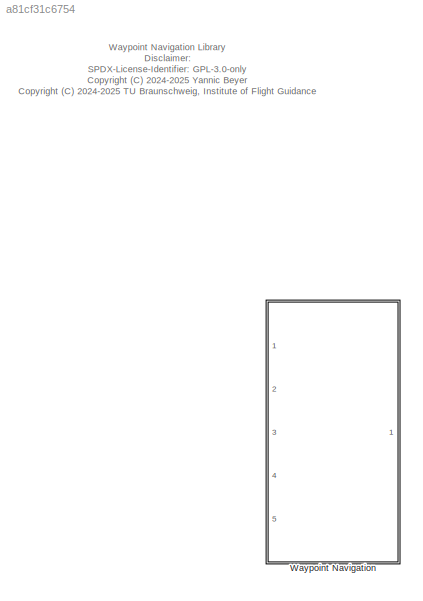
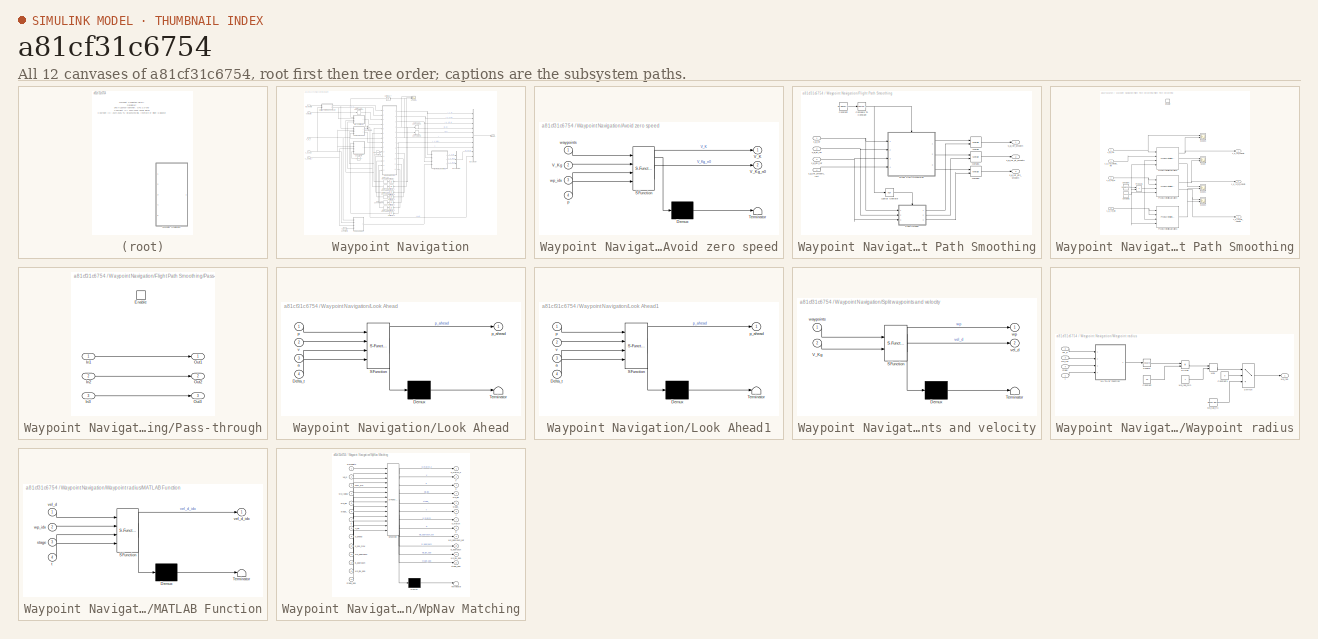
[diagram: thumbnail index - all 12 canvases of the model, root first then tree order]
MODEL slx_a81cf31c6754
KIND library
CONFIG AbsTol = auto
CONFIG EnableMultiTasking = off
CONFIG FixedStep = auto
CONFIG MaxStep = auto
CONFIG MinStep = auto
CONFIG RelTol = 1e-3
CONFIG SampleTimeConstraint = Unconstrained
CONFIG Solver = VariableStepAuto
CONFIG SolverName = VariableStepAuto
CONFIG StartTime = 0.0
CONFIG StopTime = 10.0
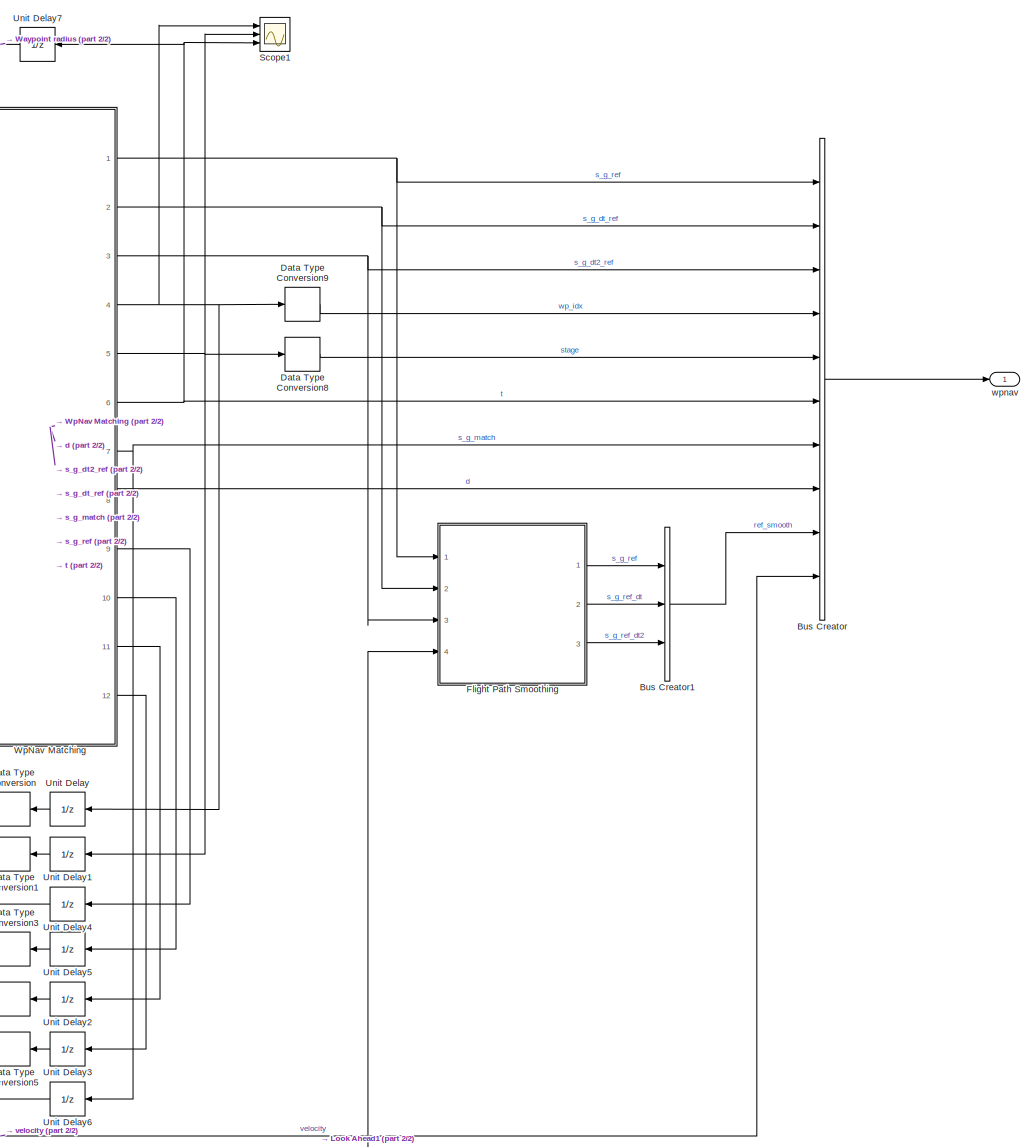
[diagram: Waypoint Navigation - part 1/2, right side, full height]
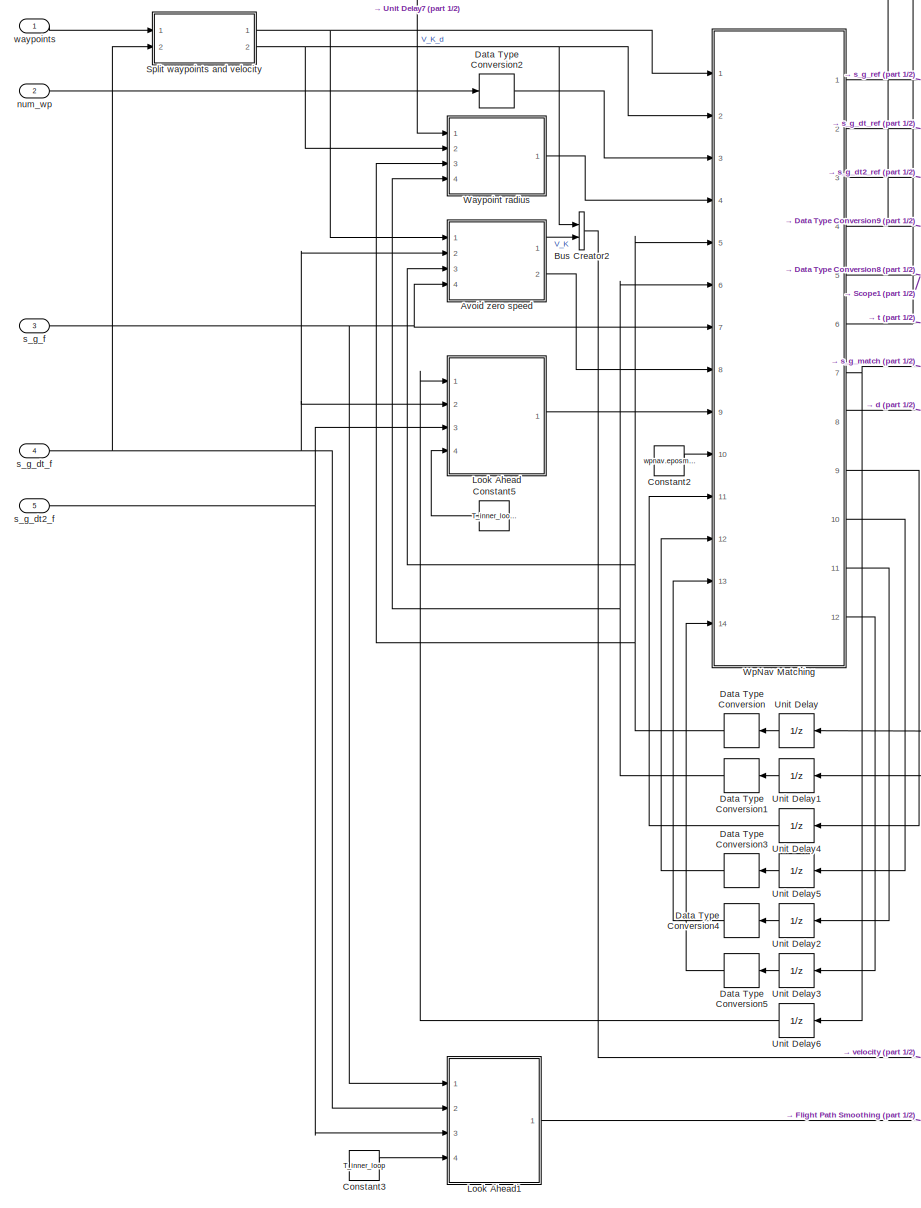
[diagram: Waypoint Navigation - part 2/2, left side, full height]
BLOCK [SubSystem] Waypoint Navigation
  Ports = [5, 1]
  RequestExecContextInheritance = off
BLOCK [SubSystem] Waypoint Navigation/Avoid zero speed
  ErrorFcn = Stateflow.Translate.translate
  PermitHierarchicalResolution = ExplicitOnly
  Ports = [4, 2]
  RequestExecContextInheritance = off
  SFBlockType = MATLAB Function
  TreatAsAtomicUnit = on
BLOCK [Demux] Waypoint Navigation/Avoid zero speed/ Demux 
  Outputs = 1
  Ports = [1, 1]
BLOCK [S-Function] Waypoint Navigation/Avoid zero speed/ SFunction 
  EnableBusSupport = off
  FunctionName = sf_sfun
  PortCounts = [4 3]
  Ports = [4, 3]
  SFcnIsStateOwnerBlock = off
  SFunctionDeploymentMode = off
  Tag = Stateflow S-Function wpnav_lib 14
BLOCK [Terminator] Waypoint Navigation/Avoid zero speed/ Terminator 
BLOCK [Outport] Waypoint Navigation/Avoid zero speed/V_K
  IconDisplay = Port number
BLOCK [Inport] Waypoint Navigation/Avoid zero speed/V_Kg
  IconDisplay = Port number
  Port = 2
BLOCK [Outport] Waypoint Navigation/Avoid zero speed/V_Kg_n0
  IconDisplay = Port number
  Port = 2
BLOCK [Inport] Waypoint Navigation/Avoid zero speed/p
  IconDisplay = Port number
  Port = 4
BLOCK [Inport] Waypoint Navigation/Avoid zero speed/waypoints
  IconDisplay = Port number
BLOCK [Inport] Waypoint Navigation/Avoid zero speed/wp_idx
  IconDisplay = Port number
  Port = 3
BLOCK [BusCreator] Waypoint Navigation/Bus Creator
  DisplayOption = bar
  InheritFromInputs = on
  Inputs = 10
  Ports = [10, 1]
BLOCK [BusCreator] Waypoint Navigation/Bus Creator1
  DisplayOption = bar
  InheritFromInputs = on
  Inputs = 3
  Ports = [3, 1]
BLOCK [BusCreator] Waypoint Navigation/Bus Creator2
  DisplayOption = bar
  InheritFromInputs = on
  Inputs = 2
  Ports = [2, 1]
BLOCK [Constant] Waypoint Navigation/Constant2
  Value = wpnav.eposmax
BLOCK [Constant] Waypoint Navigation/Constant3
  Value = T_inner_loop
BLOCK [Constant] Waypoint Navigation/Constant5
  Value = T_inner_loop + wpnav.T
BLOCK [DataTypeConversion] Waypoint Navigation/Data Type Conversion
  OutDataTypeStr = int32
  RndMeth = Floor
  SaturateOnIntegerOverflow = off
BLOCK [DataTypeConversion] Waypoint Navigation/Data Type Conversion1
  OutDataTypeStr = int32
  RndMeth = Floor
  SaturateOnIntegerOverflow = off
BLOCK [DataTypeConversion] Waypoint Navigation/Data Type Conversion2
  OutDataTypeStr = int32
  RndMeth = Floor
  SaturateOnIntegerOverflow = off
BLOCK [DataTypeConversion] Waypoint Navigation/Data Type Conversion3
  OutDataTypeStr = boolean
  RndMeth = Floor
  SaturateOnIntegerOverflow = off
BLOCK [DataTypeConversion] Waypoint Navigation/Data Type Conversion4
  OutDataTypeStr = int32
  RndMeth = Floor
  SaturateOnIntegerOverflow = off
BLOCK [DataTypeConversion] Waypoint Navigation/Data Type Conversion5
  OutDataTypeStr = int32
  RndMeth = Floor
  SaturateOnIntegerOverflow = off
BLOCK [DataTypeConversion] Waypoint Navigation/Data Type Conversion8
  RndMeth = Floor
  SaturateOnIntegerOverflow = off
BLOCK [DataTypeConversion] Waypoint Navigation/Data Type Conversion9
  RndMeth = Floor
  SaturateOnIntegerOverflow = off
BLOCK [SubSystem] Waypoint Navigation/Flight Path Smoothing
  Ports = [4, 3]
  RequestExecContextInheritance = off
BLOCK [Reference] Waypoint Navigation/Flight Path Smoothing/Compare To Constant  REF=simulink/Logic and Bit
Operations/Compare
To Constant
  Ports = [1, 1]
  SourceBlock = simulink/Logic and Bit\nOperations/Compare\nTo Constant
  SourceProductBaseCode = SL
  SourceProductName = Simulink
  SourceType = Compare To Constant
BLOCK [Constant] Waypoint Navigation/Flight Path Smoothing/Constant
  Value = ap.wpnav.T
BLOCK [SubSystem] Waypoint Navigation/Flight Path Smoothing/Flight Path Smoothing
  Ports = [4, 3, 1]
  RequestExecContextInheritance = off
BLOCK [Constant] Waypoint Navigation/Flight Path Smoothing/Flight Path Smoothing/Constant
  Value = 2/ap.wpnav.T
BLOCK [Constant] Waypoint Navigation/Flight Path Smoothing/Flight Path Smoothing/Constant1
  Value = 0.7071
BLOCK [EnablePort] Waypoint Navigation/Flight Path Smoothing/Flight Path Smoothing/Enable
  Ports = []
  StatesWhenEnabling = reset
BLOCK [Reference] Waypoint Navigation/Flight Path Smoothing/Flight Path Smoothing/PT2 discrete with saturation3  REF=filters_lib/PT2 discrete with saturation  (lib defined in slx_a584fcc4ebc5)
  Ports = [4, 1]
  SourceBlock = filters_lib/PT2 discrete with saturation
  SourceProductName = LADAC
  SourceType = PT2 discrete with saturation
BLOCK [Reference] Waypoint Navigation/Flight Path Smoothing/Flight Path Smoothing/PT2 discrete with saturation4  REF=filters_lib/PT2 discrete with saturation  (lib defined in slx_a584fcc4ebc5)
  Ports = [4, 2]
  SourceBlock = filters_lib/PT2 discrete with saturation
  SourceProductName = LADAC
  SourceType = PT2 discrete with saturation
BLOCK [Reference] Waypoint Navigation/Flight Path Smoothing/Flight Path Smoothing/PT2 discrete with saturation5  REF=filters_lib/PT2 discrete with saturation  (lib defined in slx_a584fcc4ebc5)
  Ports = [4, 3]
  SourceBlock = filters_lib/PT2 discrete with saturation
  SourceProductName = LADAC
  SourceType = PT2 discrete with saturation
BLOCK [Product] Waypoint Navigation/Flight Path Smoothing/Flight Path Smoothing/Product1
  InputSameDT = off
  OutDataTypeStr = Inherit: Inherit via internal rule
  Ports = [2, 1]
  RndMeth = Floor
  SaturateOnIntegerOverflow = off
BLOCK [Scope] Waypoint Navigation/Flight Path Smoothing/Flight Path Smoothing/Scope
  Floating = off
  NumInputPorts = 2
  Ports = [2]
  ScopeSpecificationString = Simulink.scopes.TimeScopeBlockCfg('CurrentConfiguration', extmgr.ConfigurationSet(extmgr.Configuration('Core','General UI',true),extmgr.Configuration('Core','Source UI',true),extmgr.Configuration('Sources','WiredSimulink',true,'DataLoggingVariableName','ScopeData13'),extmgr.Configuration('Visuals','Time Domain',true,'SerializedDisplays',{struct('MinYLimReal','-16.51582','MaxYLimReal','16.5113','YL...<+1553ch>
BLOCK [Scope] Waypoint Navigation/Flight Path Smoothing/Flight Path Smoothing/Scope1
  Floating = off
  NumInputPorts = 2
  Ports = [2]
  ScopeSpecificationString = Simulink.scopes.TimeScopeBlockCfg('CurrentConfiguration', extmgr.ConfigurationSet(extmgr.Configuration('Core','General UI',true),extmgr.Configuration('Core','Source UI',true),extmgr.Configuration('Sources','WiredSimulink',true,'DataLoggingVariableName','ScopeData14'),extmgr.Configuration('Visuals','Time Domain',true,'SerializedDisplays',{struct('MinYLimReal','-55.94734','MaxYLimReal','165.92894','...<+1370ch>
BLOCK [Scope] Waypoint Navigation/Flight Path Smoothing/Flight Path Smoothing/Scope2
  Floating = off
  NumInputPorts = 2
  Ports = [2]
  ScopeSpecificationString = Simulink.scopes.TimeScopeBlockCfg('CurrentConfiguration', extmgr.ConfigurationSet(extmgr.Configuration('Core','General UI',true),extmgr.Configuration('Core','Source UI',true),extmgr.Configuration('Sources','WiredSimulink',true,'DataLoggingVariableName','ScopeData15'),extmgr.Configuration('Visuals','Time Domain',true,'SerializedDisplays',{struct('MinYLimReal','-39.03924','MaxYLimReal','164.05026','...<+1370ch>
BLOCK [Scope] Waypoint Navigation/Flight Path Smoothing/Flight Path Smoothing/Scope3
  Floating = off
  NumInputPorts = 2
  Ports = [2]
  ScopeSpecificationString = Simulink.scopes.TimeScopeBlockCfg('CurrentConfiguration', extmgr.ConfigurationSet(extmgr.Configuration('Core','General UI',true),extmgr.Configuration('Core','Source UI',true),extmgr.Configuration('Sources','WiredSimulink',true,'DataLoggingVariableName','ScopeData1'),extmgr.Configuration('Visuals','Time Domain',true,'SerializedDisplays',{struct('MinYLimReal','-109.44686','MaxYLimReal','34.09141','Y...<+1470ch>
BLOCK [Inport] Waypoint Navigation/Flight Path Smoothing/Flight Path Smoothing/s_g_ref
  IconDisplay = Port number
BLOCK [Inport] Waypoint Navigation/Flight Path Smoothing/Flight Path Smoothing/s_g_ref_dt
  IconDisplay = Port number
  Port = 2
BLOCK [Inport] Waypoint Navigation/Flight Path Smoothing/Flight Path Smoothing/s_g_ref_dt2
  IconDisplay = Port number
  Port = 3
BLOCK [Outport] Waypoint Navigation/Flight Path Smoothing/Flight Path Smoothing/s_g_ref_dt2_smooth
  IconDisplay = Port number
  Port = 3
BLOCK [Outport] Waypoint Navigation/Flight Path Smoothing/Flight Path Smoothing/s_g_ref_dt_smooth
  IconDisplay = Port number
  Port = 2
BLOCK [Outport] Waypoint Navigation/Flight Path Smoothing/Flight Path Smoothing/s_g_ref_smooth
  IconDisplay = Port number
BLOCK [Inport] Waypoint Navigation/Flight Path Smoothing/Flight Path Smoothing/s_g_ref_smooth_init
  IconDisplay = Port number
  Port = 4
BLOCK [Logic] Waypoint Navigation/Flight Path Smoothing/Logical Operator
  AllPortsSameDT = off
  Operator = NOT
  OutDataTypeStr = boolean
  Ports = [1, 1]
BLOCK [Merge] Waypoint Navigation/Flight Path Smoothing/Merge
  Ports = [2, 1]
BLOCK [Merge] Waypoint Navigation/Flight Path Smoothing/Merge1
  Ports = [2, 1]
BLOCK [Merge] Waypoint Navigation/Flight Path Smoothing/Merge2
  Ports = [2, 1]
BLOCK [SubSystem] Waypoint Navigation/Flight Path Smoothing/Pass-through
  Ports = [3, 3, 1]
  RequestExecContextInheritance = off
BLOCK [EnablePort] Waypoint Navigation/Flight Path Smoothing/Pass-through/Enable
  Ports = []
BLOCK [Inport] Waypoint Navigation/Flight Path Smoothing/Pass-through/In1
  IconDisplay = Port number
BLOCK [Inport] Waypoint Navigation/Flight Path Smoothing/Pass-through/In2
  IconDisplay = Port number
  Port = 2
BLOCK [Inport] Waypoint Navigation/Flight Path Smoothing/Pass-through/In3
  IconDisplay = Port number
  Port = 3
BLOCK [Outport] Waypoint Navigation/Flight Path Smoothing/Pass-through/Out1
  IconDisplay = Port number
BLOCK [Outport] Waypoint Navigation/Flight Path Smoothing/Pass-through/Out2
  IconDisplay = Port number
  Port = 2
BLOCK [Outport] Waypoint Navigation/Flight Path Smoothing/Pass-through/Out3
  IconDisplay = Port number
  Port = 3
BLOCK [Inport] Waypoint Navigation/Flight Path Smoothing/s_g_dt2_ref
  IconDisplay = Port number
  Port = 3
BLOCK [Inport] Waypoint Navigation/Flight Path Smoothing/s_g_dt_ref
  IconDisplay = Port number
  Port = 2
BLOCK [Inport] Waypoint Navigation/Flight Path Smoothing/s_g_ref
  IconDisplay = Port number
BLOCK [Outport] Waypoint Navigation/Flight Path Smoothing/s_g_ref_dt2_smooth
  IconDisplay = Port number
  Port = 3
BLOCK [Outport] Waypoint Navigation/Flight Path Smoothing/s_g_ref_dt_smooth
  IconDisplay = Port number
  Port = 2
BLOCK [Outport] Waypoint Navigation/Flight Path Smoothing/s_g_ref_smooth
  IconDisplay = Port number
BLOCK [Inport] Waypoint Navigation/Flight Path Smoothing/s_g_ref_smooth_init
  IconDisplay = Port number
  Port = 4
BLOCK [SubSystem] Waypoint Navigation/Look Ahead
  ErrorFcn = Stateflow.Translate.translate
  PermitHierarchicalResolution = ExplicitOnly
  Ports = [4, 1]
  RequestExecContextInheritance = off
  SFBlockType = MATLAB Function
  TreatAsAtomicUnit = on
BLOCK [Demux] Waypoint Navigation/Look Ahead/ Demux 
  Outputs = 1
  Ports = [1, 1]
BLOCK [S-Function] Waypoint Navigation/Look Ahead/ SFunction 
  EnableBusSupport = off
  FunctionName = sf_sfun
  PortCounts = [4 2]
  Ports = [4, 2]
  SFcnIsStateOwnerBlock = off
  SFunctionDeploymentMode = off
  Tag = Stateflow S-Function wpnav_lib 15
BLOCK [Terminator] Waypoint Navigation/Look Ahead/ Terminator 
BLOCK [Inport] Waypoint Navigation/Look Ahead/Delta_t
  IconDisplay = Port number
  Port = 4
BLOCK [Inport] Waypoint Navigation/Look Ahead/a
  IconDisplay = Port number
  Port = 3
BLOCK [Inport] Waypoint Navigation/Look Ahead/p
  IconDisplay = Port number
BLOCK [Outport] Waypoint Navigation/Look Ahead/p_ahead
  IconDisplay = Port number
BLOCK [Inport] Waypoint Navigation/Look Ahead/v
  IconDisplay = Port number
  Port = 2
BLOCK [SubSystem] Waypoint Navigation/Look Ahead1
  ErrorFcn = Stateflow.Translate.translate
  PermitHierarchicalResolution = ExplicitOnly
  Ports = [4, 1]
  RequestExecContextInheritance = off
  SFBlockType = MATLAB Function
  TreatAsAtomicUnit = on
BLOCK [Demux] Waypoint Navigation/Look Ahead1/ Demux 
  Outputs = 1
  Ports = [1, 1]
BLOCK [S-Function] Waypoint Navigation/Look Ahead1/ SFunction 
  EnableBusSupport = off
  FunctionName = sf_sfun
  PortCounts = [4 2]
  Ports = [4, 2]
  SFcnIsStateOwnerBlock = off
  SFunctionDeploymentMode = off
  Tag = Stateflow S-Function wpnav_lib 16
BLOCK [Terminator] Waypoint Navigation/Look Ahead1/ Terminator 
BLOCK [Inport] Waypoint Navigation/Look Ahead1/Delta_t
  IconDisplay = Port number
  Port = 4
BLOCK [Inport] Waypoint Navigation/Look Ahead1/a
  IconDisplay = Port number
  Port = 3
BLOCK [Inport] Waypoint Navigation/Look Ahead1/p
  IconDisplay = Port number
BLOCK [Outport] Waypoint Navigation/Look Ahead1/p_ahead
  IconDisplay = Port number
BLOCK [Inport] Waypoint Navigation/Look Ahead1/v
  IconDisplay = Port number
  Port = 2
BLOCK [Scope] Waypoint Navigation/Scope1
  Floating = off
  NumInputPorts = 3
  Ports = [3]
  ScopeSpecificationString = Simulink.scopes.TimeScopeBlockCfg('CurrentConfiguration', extmgr.ConfigurationSet(extmgr.Configuration('Core','General UI',true),extmgr.Configuration('Core','Source UI',true),extmgr.Configuration('Sources','WiredSimulink',true,'DataLoggingVariableName','ScopeData4'),extmgr.Configuration('Visuals','Time Domain',true,'SerializedDisplays',{struct('MinYLimReal','-0.90773','MaxYLimReal','4.5453','YLabe...<+1533ch>
BLOCK [SubSystem] Waypoint Navigation/Split waypoints and velocity
  ErrorFcn = Stateflow.Translate.translate
  PermitHierarchicalResolution = ExplicitOnly
  Ports = [2, 2]
  RequestExecContextInheritance = off
  SFBlockType = MATLAB Function
  TreatAsAtomicUnit = on
BLOCK [Demux] Waypoint Navigation/Split waypoints and velocity/ Demux 
  Outputs = 1
  Ports = [1, 1]
BLOCK [S-Function] Waypoint Navigation/Split waypoints and velocity/ SFunction 
  EnableBusSupport = off
  FunctionName = sf_sfun
  PortCounts = [2 3]
  Ports = [2, 3]
  SFcnIsStateOwnerBlock = off
  SFunctionDeploymentMode = off
  Tag = Stateflow S-Function wpnav_lib 20
BLOCK [Terminator] Waypoint Navigation/Split waypoints and velocity/ Terminator 
BLOCK [Inport] Waypoint Navigation/Split waypoints and velocity/V_Kg
  IconDisplay = Port number
  Port = 2
BLOCK [Outport] Waypoint Navigation/Split waypoints and velocity/vel_d
  IconDisplay = Port number
  Port = 2
BLOCK [Inport] Waypoint Navigation/Split waypoints and velocity/waypoints
  IconDisplay = Port number
BLOCK [Outport] Waypoint Navigation/Split waypoints and velocity/wp
  IconDisplay = Port number
BLOCK [UnitDelay] Waypoint Navigation/Unit Delay
  InitialCondition = 1
  InputProcessing = Elements as channels (sample based)
  SampleTime = -1
BLOCK [UnitDelay] Waypoint Navigation/Unit Delay1
  InitialCondition = 1
  InputProcessing = Elements as channels (sample based)
  SampleTime = -1
BLOCK [UnitDelay] Waypoint Navigation/Unit Delay2
  InitialCondition = 2
  InputProcessing = Elements as channels (sample based)
  SampleTime = -1
BLOCK [UnitDelay] Waypoint Navigation/Unit Delay3
  InputProcessing = Elements as channels (sample based)
  SampleTime = -1
BLOCK [UnitDelay] Waypoint Navigation/Unit Delay4
  InitialCondition = zeros(3,5)
  InputProcessing = Elements as channels (sample based)
  SampleTime = -1
BLOCK [UnitDelay] Waypoint Navigation/Unit Delay5
  InputProcessing = Elements as channels (sample based)
  SampleTime = -1
BLOCK [UnitDelay] Waypoint Navigation/Unit Delay6
  InitialCondition = 1
  InputProcessing = Elements as channels (sample based)
  SampleTime = -1
BLOCK [UnitDelay] Waypoint Navigation/Unit Delay7
  InitialCondition = 1
  InputProcessing = Elements as channels (sample based)
  SampleTime = -1
BLOCK [SubSystem] Waypoint Navigation/Waypoint radius
  Ports = [4, 1]
  RequestExecContextInheritance = off
BLOCK [Constant] Waypoint Navigation/Waypoint radius/Constant
  Value = 20
BLOCK [Constant] Waypoint Navigation/Waypoint radius/Constant1
  Value = 0
BLOCK [Product] Waypoint Navigation/Waypoint radius/Divide
  InputSameDT = off
  Inputs = */
  OutDataTypeStr = Inherit: Inherit via internal rule
  Ports = [2, 1]
  RndMeth = Floor
  SaturateOnIntegerOverflow = off
BLOCK [SubSystem] Waypoint Navigation/Waypoint radius/MATLAB Function
  ErrorFcn = Stateflow.Translate.translate
  PermitHierarchicalResolution = ExplicitOnly
  Ports = [4, 1]
  RequestExecContextInheritance = off
  SFBlockType = MATLAB Function
  TreatAsAtomicUnit = on
BLOCK [Demux] Waypoint Navigation/Waypoint radius/MATLAB Function/ Demux 
  Outputs = 1
  Ports = [1, 1]
BLOCK [S-Function] Waypoint Navigation/Waypoint radius/MATLAB Function/ SFunction 
  EnableBusSupport = off
  FunctionName = sf_sfun
  PortCounts = [4 2]
  Ports = [4, 2]
  SFcnIsStateOwnerBlock = off
  SFunctionDeploymentMode = off
  Tag = Stateflow S-Function wpnav_lib 21
BLOCK [Terminator] Waypoint Navigation/Waypoint radius/MATLAB Function/ Terminator 
BLOCK [Inport] Waypoint Navigation/Waypoint radius/MATLAB Function/stage
  IconDisplay = Port number
  Port = 3
BLOCK [Inport] Waypoint Navigation/Waypoint radius/MATLAB Function/t
  IconDisplay = Port number
  Port = 4
BLOCK [Inport] Waypoint Navigation/Waypoint radius/MATLAB Function/vel_d
  IconDisplay = Port number
BLOCK [Outport] Waypoint Navigation/Waypoint radius/MATLAB Function/vel_d_idx
  IconDisplay = Port number
BLOCK [Inport] Waypoint Navigation/Waypoint radius/MATLAB Function/wp_idx
  IconDisplay = Port number
  Port = 2
BLOCK [MinMax] Waypoint Navigation/Waypoint radius/Max
  Function = max
  InputSameDT = off
  Inputs = 2
  Ports = [2, 1]
  SaturateOnIntegerOverflow = off
BLOCK [Math] Waypoint Navigation/Waypoint radius/Square
  Operator = square
  Ports = [1, 1]
BLOCK [Switch] Waypoint Navigation/Waypoint radius/Switch
  Criteria = u2 > Threshold
  InputSameDT = off
  SaturateOnIntegerOverflow = off
BLOCK [Inport] Waypoint Navigation/Waypoint radius/stage
  IconDisplay = Port number
  Port = 4
BLOCK [Inport] Waypoint Navigation/Waypoint radius/t
  IconDisplay = Port number
BLOCK [Inport] Waypoint Navigation/Waypoint radius/vel_d
  IconDisplay = Port number
  Port = 2
BLOCK [Inport] Waypoint Navigation/Waypoint radius/wp_idx
  IconDisplay = Port number
  Port = 3
BLOCK [Outport] Waypoint Navigation/Waypoint radius/wp_rad
  IconDisplay = Port number
BLOCK [Constant] Waypoint Navigation/Waypoint radius/wp_rad_fix
  Value = wpnav.wprad
BLOCK [Constant] Waypoint Navigation/Waypoint radius/wp_rad_min
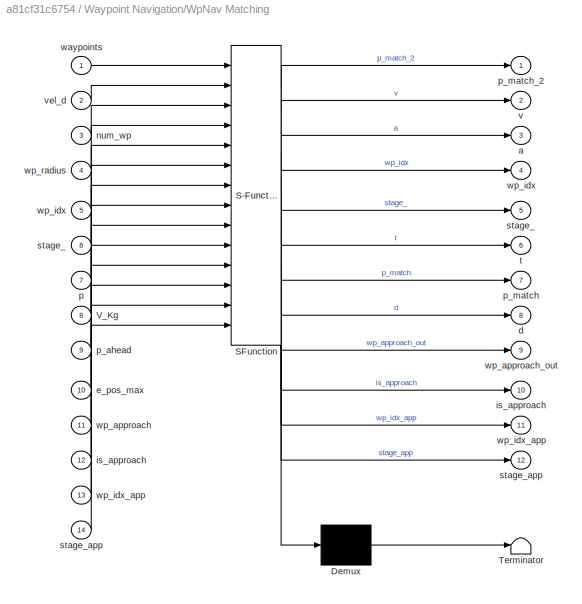
BLOCK [SubSystem] Waypoint Navigation/WpNav Matching
  ErrorFcn = Stateflow.Translate.translate
  PermitHierarchicalResolution = ExplicitOnly
  Ports = [14, 12]
  RequestExecContextInheritance = off
  SFBlockType = MATLAB Function
  TreatAsAtomicUnit = on
BLOCK [Demux] Waypoint Navigation/WpNav Matching/ Demux 
  Outputs = 1
  Ports = [1, 1]
BLOCK [S-Function] Waypoint Navigation/WpNav Matching/ SFunction 
  EnableBusSupport = off
  FunctionName = sf_sfun
  PortCounts = [14 13]
  Ports = [14, 13]
  SFcnIsStateOwnerBlock = off
  SFunctionDeploymentMode = off
  Tag = Stateflow S-Function wpnav_lib 22
BLOCK [Terminator] Waypoint Navigation/WpNav Matching/ Terminator 
BLOCK [Inport] Waypoint Navigation/WpNav Matching/V_Kg
  IconDisplay = Port number
  Port = 8
BLOCK [Outport] Waypoint Navigation/WpNav Matching/a
  IconDisplay = Port number
  Port = 3
BLOCK [Outport] Waypoint Navigation/WpNav Matching/d
  IconDisplay = Port number
  Port = 8
BLOCK [Inport] Waypoint Navigation/WpNav Matching/e_pos_max
  IconDisplay = Port number
  Port = 10
BLOCK [Outport] Waypoint Navigation/WpNav Matching/is_approach
  IconDisplay = Port number
  Port = 10
BLOCK [Inport] Waypoint Navigation/WpNav Matching/is_approach 
  IconDisplay = Port number
  Port = 12
BLOCK [Inport] Waypoint Navigation/WpNav Matching/num_wp
  IconDisplay = Port number
  Port = 3
BLOCK [Inport] Waypoint Navigation/WpNav Matching/p
  IconDisplay = Port number
  Port = 7
BLOCK [Inport] Waypoint Navigation/WpNav Matching/p_ahead
  IconDisplay = Port number
  Port = 9
BLOCK [Outport] Waypoint Navigation/WpNav Matching/p_match
  IconDisplay = Port number
  Port = 7
BLOCK [Outport] Waypoint Navigation/WpNav Matching/p_match_2
  IconDisplay = Port number
BLOCK [Outport] Waypoint Navigation/WpNav Matching/stage_
  IconDisplay = Port number
  Port = 5
BLOCK [Inport] Waypoint Navigation/WpNav Matching/stage_ 
  IconDisplay = Port number
  Port = 6
BLOCK [Outport] Waypoint Navigation/WpNav Matching/stage_app
  IconDisplay = Port number
  Port = 12
BLOCK [Inport] Waypoint Navigation/WpNav Matching/stage_app 
  IconDisplay = Port number
  Port = 14
BLOCK [Outport] Waypoint Navigation/WpNav Matching/t
  IconDisplay = Port number
  Port = 6
BLOCK [Outport] Waypoint Navigation/WpNav Matching/v
  IconDisplay = Port number
  Port = 2
BLOCK [Inport] Waypoint Navigation/WpNav Matching/vel_d
  IconDisplay = Port number
  Port = 2
BLOCK [Inport] Waypoint Navigation/WpNav Matching/waypoints
  IconDisplay = Port number
BLOCK [Inport] Waypoint Navigation/WpNav Matching/wp_approach
  IconDisplay = Port number
  Port = 11
BLOCK [Outport] Waypoint Navigation/WpNav Matching/wp_approach_out
  IconDisplay = Port number
  Port = 9
BLOCK [Outport] Waypoint Navigation/WpNav Matching/wp_idx
  IconDisplay = Port number
  Port = 4
BLOCK [Inport] Waypoint Navigation/WpNav Matching/wp_idx 
  IconDisplay = Port number
  Port = 5
BLOCK [Outport] Waypoint Navigation/WpNav Matching/wp_idx_app
  IconDisplay = Port number
  Port = 11
BLOCK [Inport] Waypoint Navigation/WpNav Matching/wp_idx_app 
  IconDisplay = Port number
  Port = 13
BLOCK [Inport] Waypoint Navigation/WpNav Matching/wp_radius
  IconDisplay = Port number
  Port = 4
BLOCK [Inport] Waypoint Navigation/num_wp
  IconDisplay = Port number
  Port = 2
BLOCK [Inport] Waypoint Navigation/s_g_dt2_f
  IconDisplay = Port number
  Port = 5
BLOCK [Inport] Waypoint Navigation/s_g_dt_f
  IconDisplay = Port number
  Port = 4
BLOCK [Inport] Waypoint Navigation/s_g_f
  IconDisplay = Port number
  Port = 3
BLOCK [Inport] Waypoint Navigation/waypoints
  IconDisplay = Port number
BLOCK [Outport] Waypoint Navigation/wpnav
  IconDisplay = Port number
ANNOTATION (root): Waypoint Navigation Library Disclaimer: SPDX-License-Identifier: GPL-3.0-only <copyright redacted>
CHART Waypoint Navigation/Avoid zero speed states=1 transitions=1
  STATE_LABEL 'eML_blk_kernel()'
  STATE_LABEL 'SCRIPT:\nfunction [V_K,V_Kg_n0] = fcn(waypoints,V_Kg,wp_idx,p)\nV_K = norm(V_Kg,2);\nV_Kg_n0 = V_Kg;\nif V_K < 0.3\n    direction = waypoints(:,wp_idx) - p;\n    direction = divideFinite(direction,norm(direction,2));\n    V_Kg_n0(:) = 0.3 *  direction;\nend\nend'
CHART Waypoint Navigation/Look Ahead states=1 transitions=1
  STATE_LABEL 'eML_blk_kernel()'
  STATE_LABEL 'SCRIPT:\nfunction p_ahead = fcn(p,v,a,Delta_t)\np_ahead = p + v*Delta_t + 0.5*a*Delta_t*Delta_t;\nend'
CHART Waypoint Navigation/Look Ahead1 states=1 transitions=1
  STATE_LABEL 'eML_blk_kernel()'
  STATE_LABEL 'SCRIPT:\nfunction p_ahead = fcn(p,v,a,Delta_t)\n\np_ahead = p + v*Delta_t + 0.5*a*Delta_t*Delta_t;\n\nend'
CHART Waypoint Navigation/Split waypoints and velocity states=1 transitions=1
  STATE_LABEL 'eML_blk_kernel()'
  STATE_LABEL 'SCRIPT:\nfunction [wp,vel_d] = fcn(waypoints, V_Kg)\nif size(waypoints,2) < 1\n    wp = zeros(3,2,class(waypoints));\nelseif size(waypoints,2) < 2\n    wp = [waypoints(1:3,:),zeros(3,1,class(waypoints))];\nelse\n    wp = waypoints(1:3,:);\nend\nif size(waypoints,1)<4\n    vel_d = repmat(norm(V_Kg),1,size(waypoints,2));\nelse\n    vel_d = waypoints(4,:);\nend\nend'
CHART Waypoint Navigation/Waypoint radius/MATLAB Function states=1 transitions=1
  STATE_LABEL 'eML_blk_kernel()'
  STATE_LABEL 'SCRIPT:\nfunction vel_d_idx = fcn(vel_d, wp_idx, stage, t)\nif wp_idx == 1\n    vel_d_prev = vel_d(end);\nelse\n    vel_d_prev = vel_d(wp_idx-1);\nend\nif stage == 0\n    vel_d_idx = vel_d_prev;\nelse\n    vel_d_idx = vel_d_prev + (vel_d(wp_idx)-vel_d_prev)*sqrtReal(t);\nend\nend'
CHART Waypoint Navigation/WpNav Matching states=1 transitions=1
  STATE_LABEL 'eML_blk_kernel()'
  STATE_LABEL 'SCRIPT:\nfunction [p_match_2,v,a,wp_idx,stage_,t,p_match,d,wp_approach_out,is_approach,wp_idx_app,stage_app] = ...\n    wpnavMatchSim(waypoints, vel_d, num_wp, wp_radius, wp_idx, stage_, p, V_Kg, p_ahead, ...\n    e_pos_max, wp_approach, is_approach, wp_idx_app, stage_app )\n\na = zeros(3,1,superiorfloat(waypoints));\nv = zeros(3,1,superiorfloat(waypoints));\n% Re-use of wp_approach causes data type erro...<+3608ch>'
